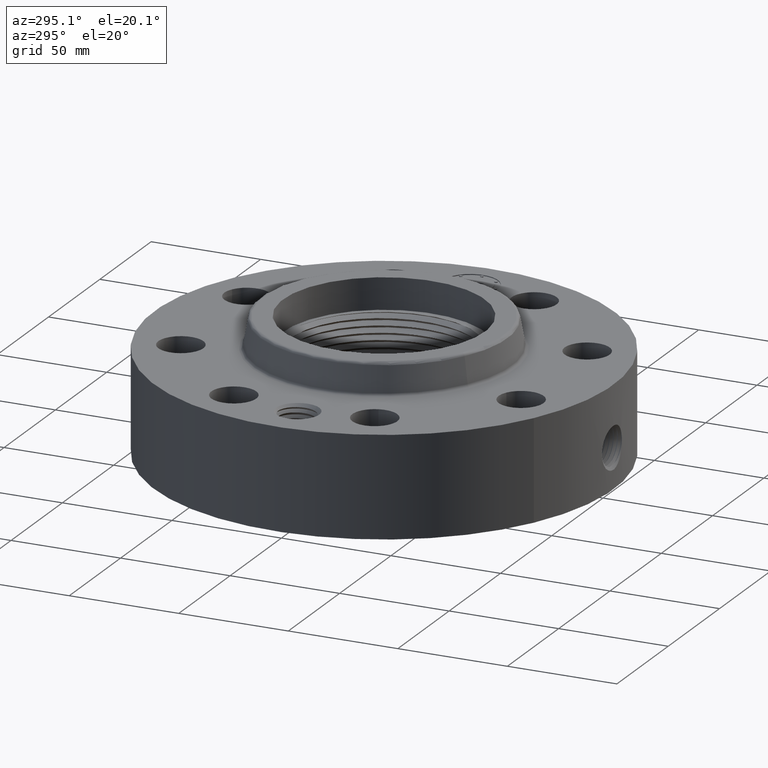
[diagram: clean part render]
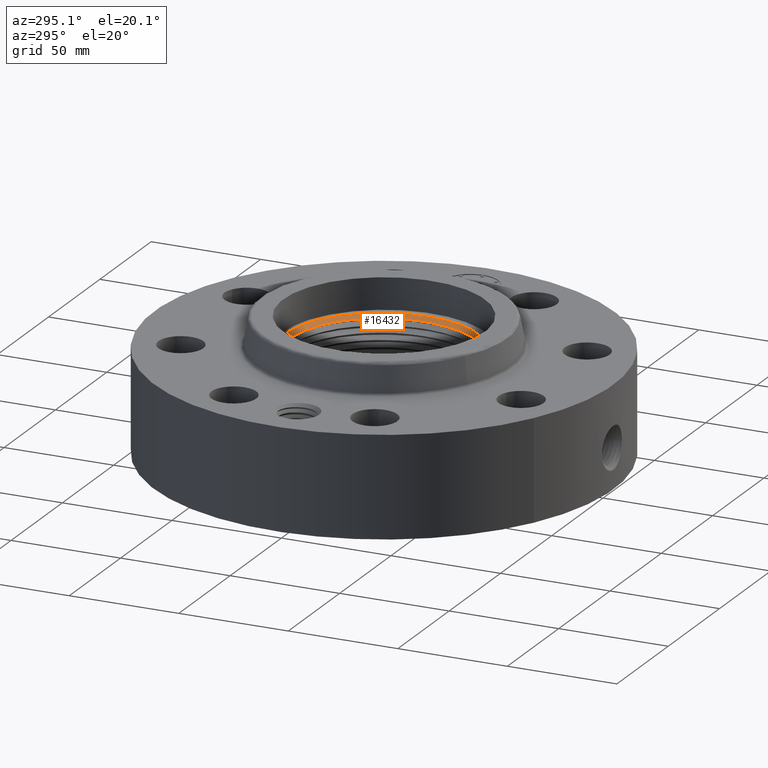
[diagram: same view with one face highlighted and labeled with its STEP entity id]
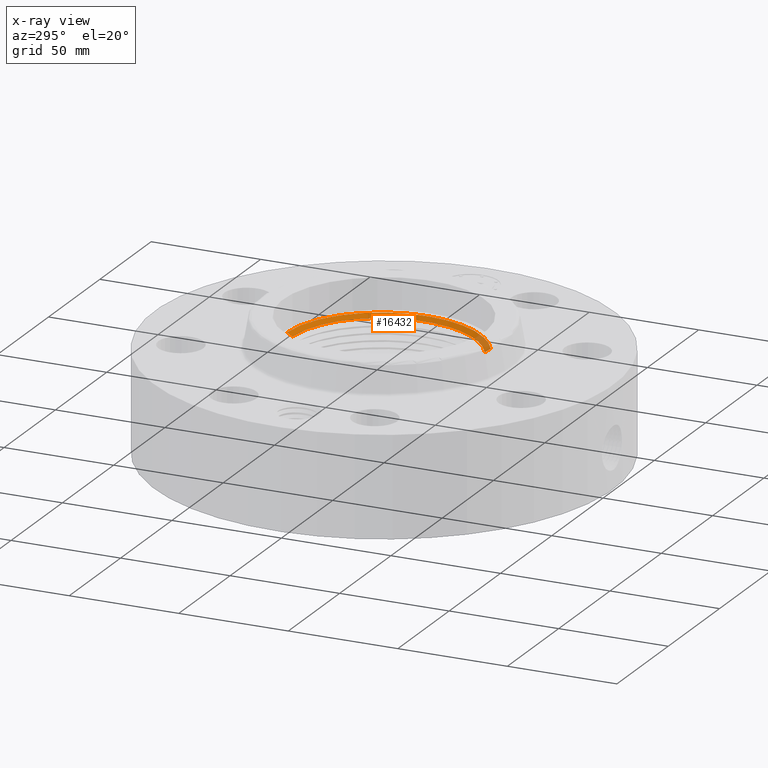
[diagram: x-ray of the same camera — body ghosted, the highlighted face saturated]
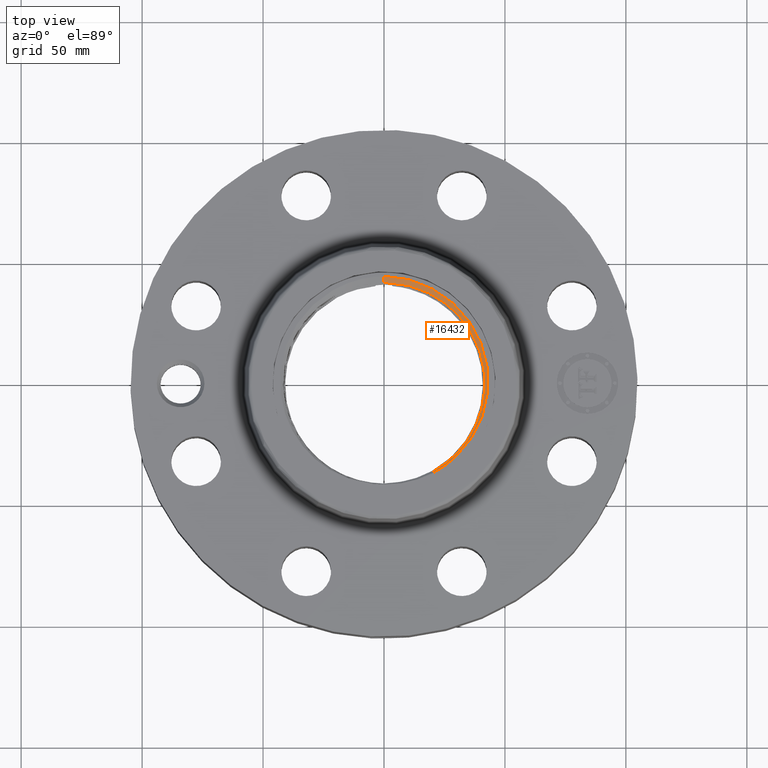
[diagram: same view with one face highlighted and labeled with its STEP entity id]
A machine part, auxiliary view. The second image highlights one B-rep face of the part: STEP entity #16432.
The next image is the same camera in x-ray: the body ghosted, the highlighted face saturated — about 10% of this face is hidden behind the body in this view.
A second angle (top view) of the same face is appended — the face is thin or edge-on in the first view.
In plain terms, the highlighted face is a freeform B-spline surface patch.
Its self-contained STEP definition (entity closure, byte-faithful):
#13119=CARTESIAN_POINT('Vertex',(0.787218389212,-1.44099503298,1.69731088898)) ;
#14484=CARTESIAN_POINT('Control Point',(1.39070667825E-006,1.64364697872,1.74986370505)) ;
#14485=CARTESIAN_POINT('Control Point',(0.0869205049048,1.64361402877,1.74881165365)) ;
#14486=CARTESIAN_POINT('Control Point',(0.173836346798,1.63783552261,1.74775959096)) ;
#14487=CARTESIAN_POINT('Control Point',(0.260229231068,1.62631173234,1.74670579628)) ;
#14488=CARTESIAN_POINT('Control Point',(0.430591819698,1.59199348855,1.74460219717)) ;
#14489=CARTESIAN_POINT('Control Point',(0.594895151797,1.53563281847,1.74250035914)) ;
#14490=CARTESIAN_POINT('Control Point',(0.675230199997,1.50205110871,1.74144865487)) ;
#14491=CARTESIAN_POINT('Control Point',(0.831241402807,1.4242443131,1.73934348828)) ;
#14492=CARTESIAN_POINT('Control Point',(0.975592179536,1.32660098684,1.73724188668)) ;
#14493=CARTESIAN_POINT('Control Point',(1.04425298981,1.27315919003,1.73619374738)) ;
#14494=CARTESIAN_POINT('Control Point',(1.17360649046,1.15813678821,1.73410632679)) ;
#14495=CARTESIAN_POINT('Control Point',(1.28678727953,1.02719546146,1.7320163111)) ;
#14496=CARTESIAN_POINT('Control Point',(1.33921405923,0.957856137956,1.73096622896)) ;
#14497=CARTESIAN_POINT('Control Point',(1.43473461422,0.81231166842,1.72886012144)) ;
#14498=CARTESIAN_POINT('Control Point',(1.5102825614,0.655439584612,1.72675242341)) ;
#14499=CARTESIAN_POINT('Control Point',(1.54271325685,0.574759369272,1.72570075077)) ;
#14500=CARTESIAN_POINT('Control Point',(1.62383092402,0.327308786768,1.72255124069)) ;
#14501=CARTESIAN_POINT('Control Point',(1.65520322309,0.0669446718347,1.71940808537)) ;
#14502=CARTESIAN_POINT('Control Point',(1.65293346095,-0.108789931088,1.71731040157)) ;
#14503=CARTESIAN_POINT('Control Point',(1.60859362841,-0.410373046403,1.71365036306)) ;
#14504=CARTESIAN_POINT('Control Point',(1.49743072484,-0.692889698145,1.70999018653)) ;
#14505=CARTESIAN_POINT('Control Point',(1.43773461896,-0.81028073686,1.70840535409)) ;
#14506=CARTESIAN_POINT('Control Point',(1.29362005729,-1.03309309818,1.70520705125)) ;
#14507=CARTESIAN_POINT('Control Point',(1.10806005339,-1.22277591179,1.70200863927)) ;
#14508=CARTESIAN_POINT('Control Point',(1.0067185173,-1.30687756237,1.70042369767)) ;
#14509=CARTESIAN_POINT('Control Point',(0.899976993537,-1.37945014932,1.69886731219)) ;
#14510=CARTESIAN_POINT('Control Point',(0.787218994026,-1.44099470286,1.69731089733)) ;
#14511=CARTESIAN_POINT('Vertex',(1.3907066785E-006,1.64364697872,1.74986370505)) ;
#14572=CARTESIAN_POINT('Vertex',(0.835437658929,-1.52926145811,1.75588543873)) ;
#14576=CARTESIAN_POINT('Control Point',(0.787218389212,-1.44099503298,1.69731088898)) ;
#14577=CARTESIAN_POINT('Control Point',(0.835437658929,-1.52926145811,1.75588543873)) ;
#16366=CARTESIAN_POINT('Control Point',(1.39070667842E-006,1.64364697872,1.74986370505)) ;
#16367=CARTESIAN_POINT('Control Point',(1.47580753119E-006,1.74422560357,1.80843825481)) ;
#16368=CARTESIAN_POINT('Vertex',(1.47580753126E-006,1.74422560357,1.80843825481)) ;
#16397=CARTESIAN_POINT('Control Point',(1.38958579712E-006,1.64232223493,1.74909220642)) ;
#16398=CARTESIAN_POINT('Control Point',(1.47580753133E-006,1.74422560357,1.80843825481)) ;
#16399=CARTESIAN_POINT('Control Point',(0.579360105247,1.64210243054,1.74207410911)) ;
#16400=CARTESIAN_POINT('Control Point',(0.615308539037,1.74400576874,1.8014201575)) ;
#16401=CARTESIAN_POINT('Control Point',(1.15861903199,1.38640848167,1.73505489819)) ;
#16402=CARTESIAN_POINT('Control Point',(1.23052162291,1.47246002315,1.7944009466)) ;
#16403=CARTESIAN_POINT('Control Point',(1.5799220821,0.876204279376,1.72810677927)) ;
#16404=CARTESIAN_POINT('Control Point',(1.67799019902,0.930600630148,1.78745283015)) ;
#16405=CARTESIAN_POINT('Control Point',(1.79187997783,-0.0490831645996,1.71758128427)) ;
#16406=CARTESIAN_POINT('Control Point',(1.90313178052,-0.0521240516112,1.77692733141)) ;
#16407=CARTESIAN_POINT('Control Point',(1.43977593083,-0.865672812982,1.70705322797)) ;
#16408=CARTESIAN_POINT('Control Point',(1.52918370598,-0.919428246203,1.76639927698)) ;
#16409=CARTESIAN_POINT('Control Point',(1.26362190825,-1.10690845162,1.70355051569)) ;
#16410=CARTESIAN_POINT('Control Point',(1.34209644544,-1.17564902815,1.76289656406)) ;
#16411=CARTESIAN_POINT('Control Point',(1.04035728608,-1.30132005669,1.70004509635)) ;
#16412=CARTESIAN_POINT('Control Point',(1.10497052591,-1.382140113,1.75939114472)) ;
#16413=CARTESIAN_POINT('Control Point',(0.786583282316,-1.43983245595,1.69653939035)) ;
#16414=CARTESIAN_POINT('Control Point',(0.835437658929,-1.52926145811,1.75588543873)) ;
#16416=CARTESIAN_POINT('Control Point',(1.47580753133E-006,1.74422560357,1.80843825481)) ;
#16417=CARTESIAN_POINT('Control Point',(0.615308539037,1.74400576874,1.8014201575)) ;
#16418=CARTESIAN_POINT('Control Point',(1.23052162291,1.47246002315,1.7944009466)) ;
#16419=CARTESIAN_POINT('Control Point',(1.67799019902,0.930600630148,1.78745283015)) ;
#16420=CARTESIAN_POINT('Control Point',(1.90313178052,-0.0521240516112,1.77692733141)) ;
#16421=CARTESIAN_POINT('Control Point',(1.52918370598,-0.919428246203,1.76639927698)) ;
#16422=CARTESIAN_POINT('Control Point',(1.34209644544,-1.17564902815,1.76289656406)) ;
#16423=CARTESIAN_POINT('Control Point',(1.10497052591,-1.382140113,1.75939114472)) ;
#16424=CARTESIAN_POINT('Control Point',(0.835437658929,-1.52926145811,1.75588543873)) ;
#16427=ORIENTED_EDGE('',*,*,#14578,.F.) ;
#16428=ORIENTED_EDGE('',*,*,#16425,.F.) ;
#16429=ORIENTED_EDGE('',*,*,#16370,.T.) ;
#16430=ORIENTED_EDGE('',*,*,#14513,.T.) ;
#16432=ADVANCED_FACE('PartBody',(#16431),#16396,.T.) ;
#14483=B_SPLINE_CURVE_WITH_KNOTS('',5,(#14484,#14485,#14486,#14487,#14488,#14489,#14490,#14491,#14492,#14493,#14494,#14495,#14496,#14497,#14498,#14499,#14500,#14501,#14502,#14503,#14504,#14505,#14506,#14507,#14508,#14509,#14510),.UNSPECIFIED.,.F.,.U.,(6,3,3,3,3,3,3,3,6),(0.,15.9212350651,31.7760643228,47.6308935806,63.4757172485,79.3205409165,111.148956897,134.691325037,158.233693177),.UNSPECIFIED.) ;
#14575=B_SPLINE_CURVE_WITH_KNOTS('',1,(#14576,#14577),.UNSPECIFIED.,.F.,.U.,(2,2),(-1.45870574758,1.49764450472),.UNSPECIFIED.) ;
#16365=B_SPLINE_CURVE_WITH_KNOTS('',1,(#16366,#16367),.UNSPECIFIED.,.F.,.U.,(2,2),(-1.4587057476,1.49764450472),.UNSPECIFIED.) ;
#16415=B_SPLINE_CURVE_WITH_KNOTS('',5,(#16416,#16417,#16418,#16419,#16420,#16421,#16422,#16423,#16424),.UNSPECIFIED.,.F.,.U.,(6,3,6),(0.,75.9432883812,113.842027175),.UNSPECIFIED.) ;
#16396=B_SPLINE_SURFACE_WITH_KNOTS('',5,1,((#16397,#16398),(#16399,#16400),(#16401,#16402),(#16403,#16404),(#16405,#16406),(#16407,#16408),(#16409,#16410),(#16411,#16412),(#16413,#16414)),.UNSPECIFIED.,.F.,.F.,.U.,(6,3,6),(2,2),(0.,75.9432883812,113.842027175),(-1.49764450472,1.49764450472),.UNSPECIFIED.) ;
#14513=EDGE_CURVE('',#14512,#13120,#14483,.T.) ;
#14578=EDGE_CURVE('',#14573,#13120,#14575,.F.) ;
#16370=EDGE_CURVE('',#16369,#14512,#16365,.F.) ;
#16425=EDGE_CURVE('',#16369,#14573,#16415,.T.) ;
#16426=EDGE_LOOP('',(#16427,#16428,#16429,#16430)) ;
#16431=FACE_OUTER_BOUND('',#16426,.T.) ;
#13120=VERTEX_POINT('',#13119) ;
#14512=VERTEX_POINT('',#14511) ;
#14573=VERTEX_POINT('',#14572) ;
#16369=VERTEX_POINT('',#16368) ;